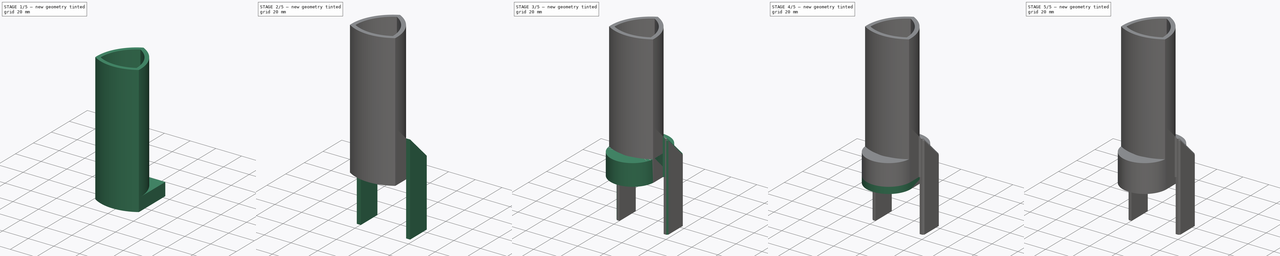
[diagram: build sequence overview — one tinted view per stage of 5, left to right]
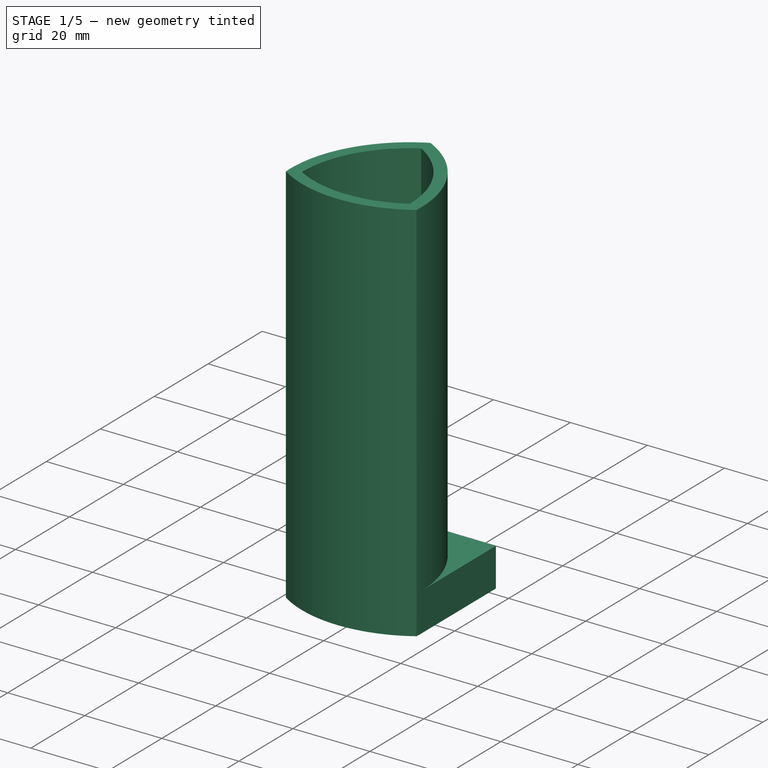
[diagram: stage 1 of 5 — iso view after this stage's code; geometry added in this stage tinted green]
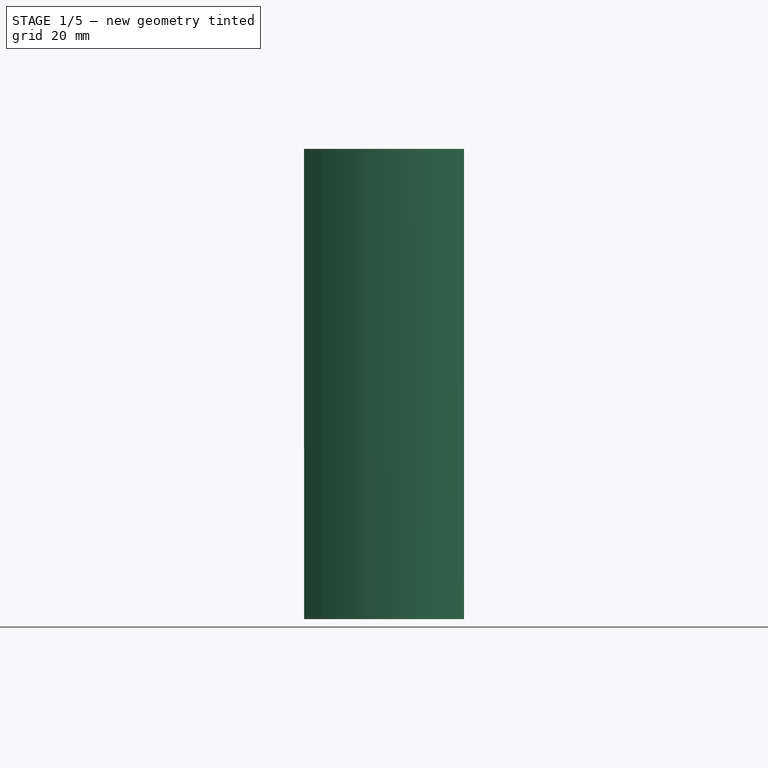
[diagram: stage 1 of 5 — front view after this stage's code; geometry added in this stage tinted green]
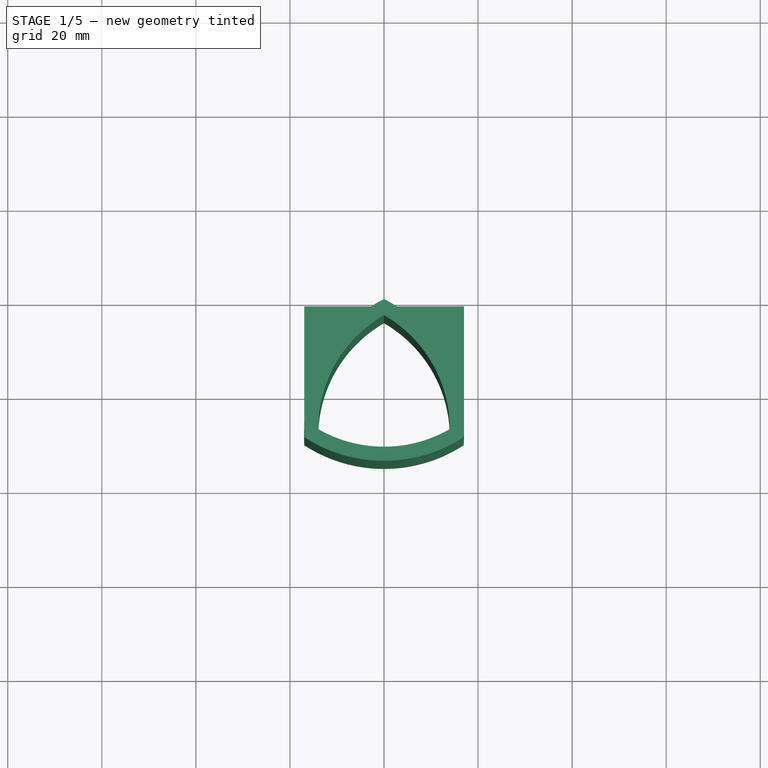
[diagram: stage 1 of 5 — top view after this stage's code; geometry added in this stage tinted green]
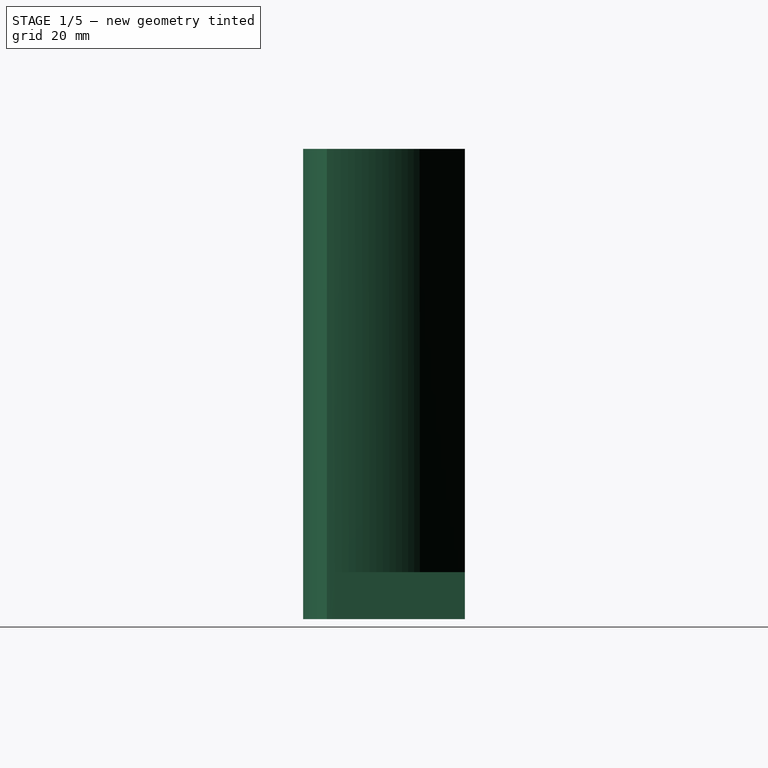
[diagram: stage 1 of 5 — right view after this stage's code; geometry added in this stage tinted green]
FCSTD DOCUMENT  (FreeCAD 1.1R39391 (Git))
Label: Щётка ручака
License: All rights reserved
LicenseURL: https://en.wikipedia.org/wiki/All_rights_reserved
objects: Sketcher::SketchObject×10, PartDesign::Pad×8, PartDesign::Pocket×3, PartDesign::Body×2, PartDesign::Chamfer×2, PartDesign::PolarPattern×1, PartDesign::Thickness×1, PartDesign::SubShapeBinder×1, PartDesign::Draft×1
note: 70 computed .brp shape members not serialized (recipe doc carries the construction recipe); baked Part::Feature solids carry a one-line shape summary decoded from their .brp

FEATURE [PartDesign::Body] Body  label="Тело"
  AllowCompound = false
  Group = -> [Sketch,Pad,Sketch001,Pad001,PolarPattern,Sketch002,Pad002,Sketch003,Pad003,Sketch004,Pocket,Sketch006,Pocket001,Sketch007,Pocket002]
  Origin = -> Origin
  Placement = pos=(-47,26,-5.8e-15) rot=(1,0,0;4.71239rad)
  Tip = -> Pocket002
FEATURE [Sketcher::SketchObject] Sketch008
  ArcFitTolerance = 1e-06
  AttachmentSupport = -> [XY_Plane002]
  ExternalTypes = [0]
  FullyConstrained = true
  MakeInternals = false
  MapMode = 5
  sketch-geometry (7):
    g0: LineSegment [constr] StartX=-5.3e-15 StartY=16.1658 StartZ=0 EndX=-14 EndY=-8.0829 EndZ=0
    g1: LineSegment [constr] StartX=-14 StartY=-8.0829 StartZ=0 EndX=14 EndY=-8.0829 EndZ=0
    g2: LineSegment [constr] StartX=14 StartY=-8.0829 StartZ=0 EndX=-5.3e-15 EndY=16.1658 EndZ=0
    g3: Circle [constr] CenterX=0 CenterY=0 CenterZ=0 NormalX=0 NormalY=0 NormalZ=1 AngleXU=0 Radius=16.1658
    g4: ArcOfCircle CenterX=14 CenterY=-8.0829 CenterZ=0 NormalX=0 NormalY=0 NormalZ=1 AngleXU=0 Radius=28 StartAngle=2.0944 EndAngle=3.14159
    g5: ArcOfCircle CenterX=-5.3e-15 CenterY=16.1658 CenterZ=0 NormalX=0 NormalY=0 NormalZ=1 AngleXU=0 Radius=28 StartAngle=4.18879 EndAngle=5.23599
    g6: ArcOfCircle CenterX=-14 CenterY=-8.0829 CenterZ=0 NormalX=0 NormalY=0 NormalZ=1 AngleXU=0 Radius=28 StartAngle=0 EndAngle=1.0472
  constraints (18):
    c: Coincident(g0,g1)
    c: Coincident(g1,g2)
    c: Coincident(g2,g0)
    c: Equal(g0,g1)
    c: PointOnObject(g0,g3)
    c: PointOnObject(g1,g3)
    c: PointOnObject(g2,g3)
    c: Horizontal(g1)
    c: Coincident(g4,g1)
    c: Coincident(g5,g0)
    c: Coincident(g5,g4)
    c: Coincident(g6,g0)
    c: Coincident(g6,g4)
    c: Coincident(g6,g5)
    c: Coincident(g1,g5)
    c: Coincident(g4,g0)
    c: DistanceX(g1,g1) = 28
    c: Coincident(g3,g-1)
FEATURE [PartDesign::Pad] Pad005
  Direction = (0,0,1)
  Length = 100
  Length2 = 10
  Profile = -> Sketch008
  ReferenceAxis = -> Sketch008 [N_Axis]
  Refine = true
  Suppressed = false
  Type = 0
FEATURE [PartDesign::Thickness] Thickness
  Base = -> Pad005 [Face4,Face5]
  BaseFeature = -> Pad005
  Intersection = false
  Join = 1
  Mode = 0
  Refine = true
  SupportTransform = false
  Suppressed = false
  Value = 3
FEATURE [Sketcher::SketchObject] Sketch009
  ArcFitTolerance = 1e-06
  AttachmentSupport = -> [Thickness]
  ExternalGeometry = -> [Thickness]
  ExternalTypes = [0]
  FullyConstrained = true
  MakeInternals = false
  MapMode = 5
  Placement = pos=(0,0,0) rot=(1,0,0;3.14159rad)
  sketch-geometry (6):
    g0: ArcOfCircle CenterX=14 CenterY=8.0829 CenterZ=0 NormalX=0 NormalY=0 NormalZ=1 AngleXU=0 Radius=31 StartAngle=3.08657 EndAngle=4.24382
    g1: ArcOfCircle CenterX=-14 CenterY=8.0829 CenterZ=0 NormalX=0 NormalY=0 NormalZ=1 AngleXU=0 Radius=31 StartAngle=5.18096 EndAngle=6.28319
    g2: LineSegment StartX=-16.9531 StartY=9.78786 StartZ=0 EndX=-16.9531 EndY=-19.5757 EndZ=0
    g3: LineSegment StartX=-16.9531 StartY=-19.5757 StartZ=0 EndX=-3.6e-15 EndY=-19.5757 EndZ=0
    g4: LineSegment StartX=-1.07e-14 StartY=-19.5757 StartZ=0 EndX=17 EndY=-19.5757 EndZ=0
    g5: LineSegment StartX=17 StartY=-19.5757 StartZ=0 EndX=17 EndY=8.0829 EndZ=0
  constraints (15):
    c: Coincident(g1,g-4)
    c: Coincident(g1,g-4)
    c: Coincident(g2,g0)
    c: Vertical(g2)
    c: Coincident(g3,g2)
    c: Coincident(g3,g0)
    c: Horizontal(g4)
    c: Coincident(g5,g4)
    c: Tangent(g5,g1) = -1.5708
    c: Vertical(g5)
    c: Coincident(g4,g1)
    c: Horizontal(g3)
    c: Coincident(g0,g-3)
    c: Coincident(g0,g-3)
    c: Horizontal(g0,g-3)
FEATURE [PartDesign::Pad] Pad006
  BaseFeature = -> Thickness
  Direction = (0,0,-1)
  Length = 10
  Length2 = 10
  Profile = -> Sketch009
  ReferenceAxis = -> Sketch009 [N_Axis]
  Refine = true
  Reversed = true
  Suppressed = false
  Type = 0
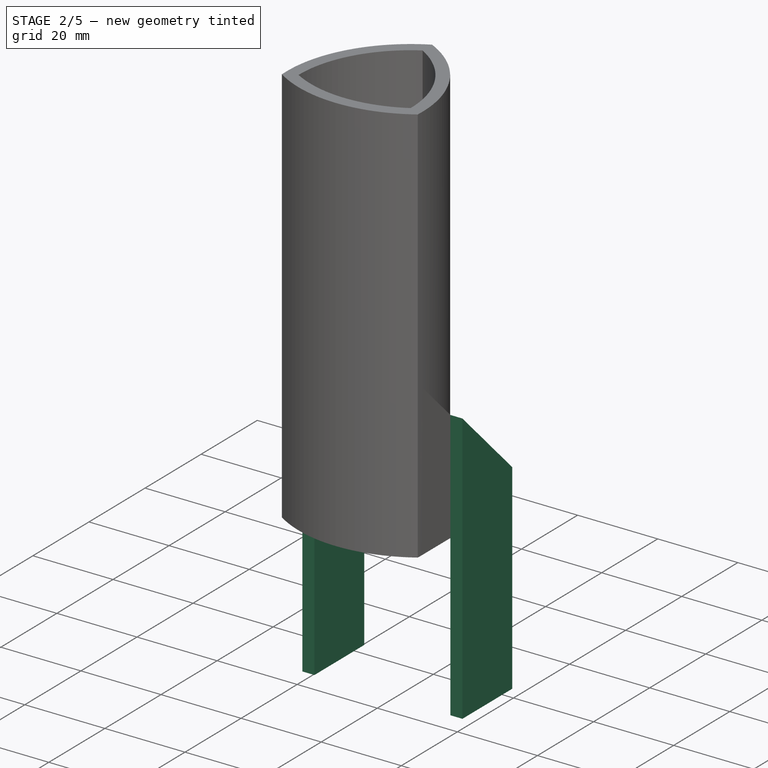
[diagram: stage 2 of 5 — iso view after this stage's code; geometry added in this stage tinted green]
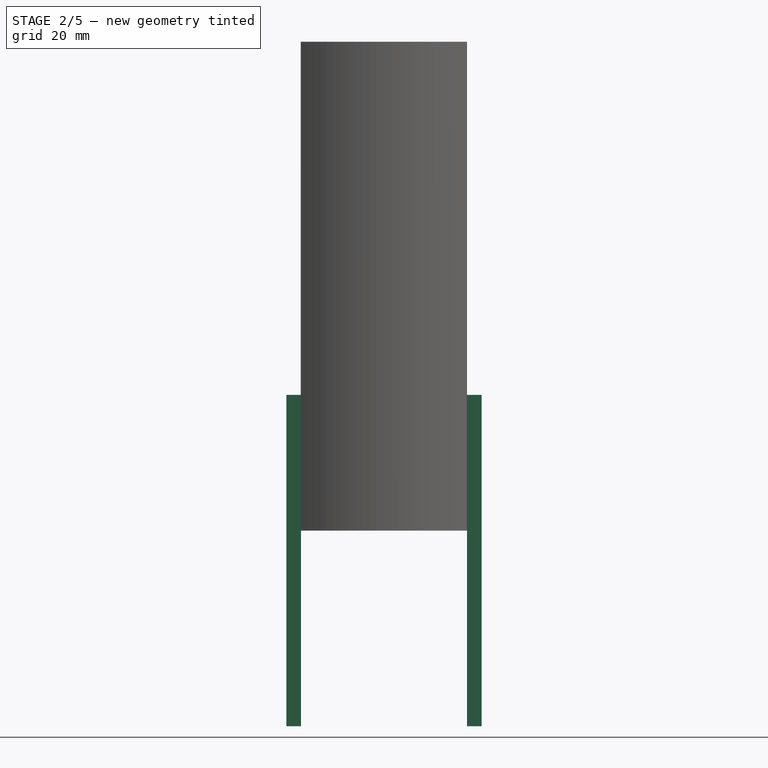
[diagram: stage 2 of 5 — front view after this stage's code; geometry added in this stage tinted green]
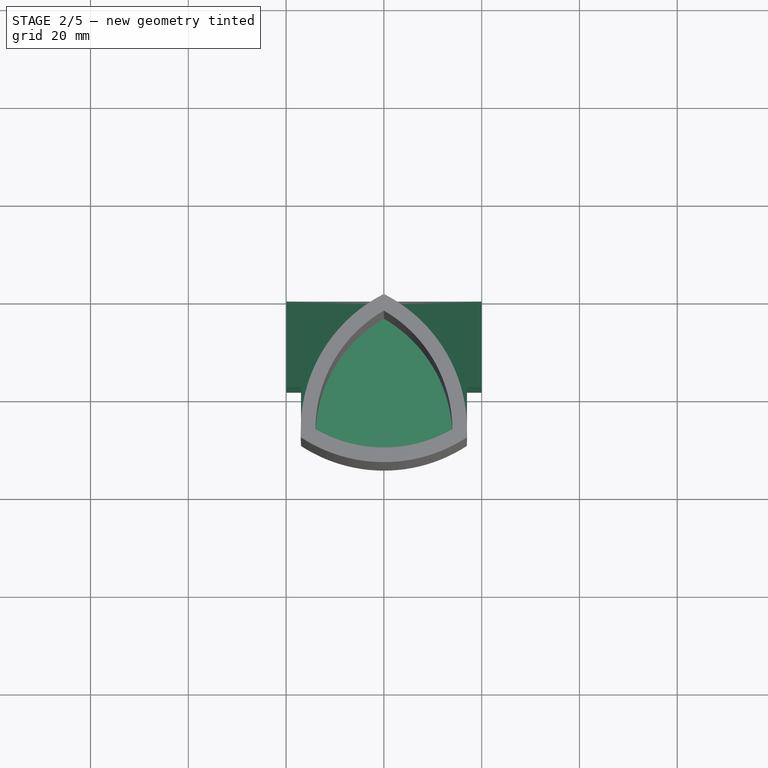
[diagram: stage 2 of 5 — top view after this stage's code; geometry added in this stage tinted green]
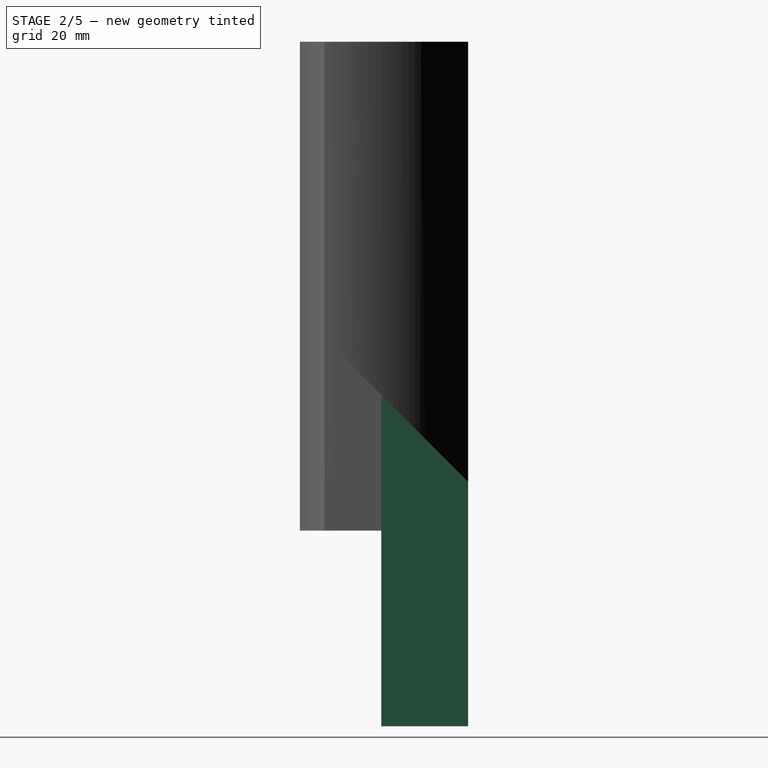
[diagram: stage 2 of 5 — right view after this stage's code; geometry added in this stage tinted green]
FEATURE [Sketcher::SketchObject] Sketch010
  ArcFitTolerance = 1e-06
  AttachmentSupport = -> [Pad006]
  ExternalGeometry = -> [Pad006]
  ExternalTypes = [0]
  FullyConstrained = false
  MakeInternals = false
  MapMode = 5
  Placement = pos=(0,0,0) rot=(1,0,0;3.14159rad)
  sketch-geometry (8):
    g0: LineSegment StartX=-16.9531 StartY=-19.5757 StartZ=0 EndX=-16.9531 EndY=-1.80447 EndZ=0
    g1: LineSegment StartX=-16.9531 StartY=-1.80447 StartZ=0 EndX=-19.9531 EndY=-1.80447 EndZ=0
    g2: LineSegment StartX=-19.9531 StartY=-1.80447 StartZ=0 EndX=-19.9531 EndY=-19.5757 EndZ=0
    g3: LineSegment StartX=-19.9531 StartY=-19.5757 StartZ=0 EndX=-16.9531 EndY=-19.5757 EndZ=0
    g4: LineSegment StartX=17 StartY=-1.80447 StartZ=0 EndX=17 EndY=-19.5757 EndZ=0
    g5: LineSegment StartX=17 StartY=-19.5757 StartZ=0 EndX=20 EndY=-19.5757 EndZ=0
    g6: LineSegment StartX=20 StartY=-19.5757 StartZ=0 EndX=20 EndY=-1.80447 EndZ=0
    g7: LineSegment StartX=20 StartY=-1.80447 StartZ=0 EndX=17 EndY=-1.80447 EndZ=0
  constraints (21):
    c: Coincident(g-4,g0)
    c: PointOnObject(g0,g-4)
    c: Coincident(g0,g1)
    c: Coincident(g1,g2)
    c: Coincident(g2,g3)
    c: Coincident(g3,g0)
    c: Horizontal(g1)
    c: Horizontal(g3)
    c: Vertical(g2)
    c: Coincident(g4,g5)
    c: Coincident(g5,g6)
    c: Coincident(g6,g7)
    c: Coincident(g7,g4)
    c: Vertical(g6)
    c: Horizontal(g5)
    c: Horizontal(g7)
    c: PointOnObject(g4,g-5)
    c: Coincident(g4,g-5)
    c: Horizontal(g0,g4)
    c: Equal(g7,g1)
    c: DistanceX(g1,g1) = 3
FEATURE [PartDesign::Pad] Pad007
  BaseFeature = -> Pad006
  Direction = (0,0,-1)
  Length = 40
  Length2 = 10
  Profile = -> Sketch010
  ReferenceAxis = -> Sketch010 [N_Axis]
  Refine = true
  Suppressed = false
  Type = 4
FEATURE [PartDesign::SubShapeBinder] Binder
  BindCopyOnChange = 0
  BindMode = 0
  ClaimChildren = false
  Context = -> Body002 [Binder.]
  Fuse = false
  MakeFace = true
  OffsetFill = false
  OffsetIntersection = false
  OffsetJoinType = 0
  OffsetOpenResult = false
  PartialLoad = false
  Refine = true
  Relative = true
  Support = -> [Pad007[Edge8,Edge3,Edge6]]
  _Version = 2
FEATURE [PartDesign::Pad] Pad008
  BaseFeature = -> Pad007
  Direction = (0,0,1)
  Length = 5
  Length2 = 10
  Profile = -> Binder
  Refine = true
  Suppressed = false
  Type = 0
FEATURE [PartDesign::Draft] Draft
  Angle = 45
  Base = -> Pad008 [Face13,Face12]
  BaseFeature = -> Pad008
  Refine = true
  Reversed = true
  SupportTransform = false
  Suppressed = false
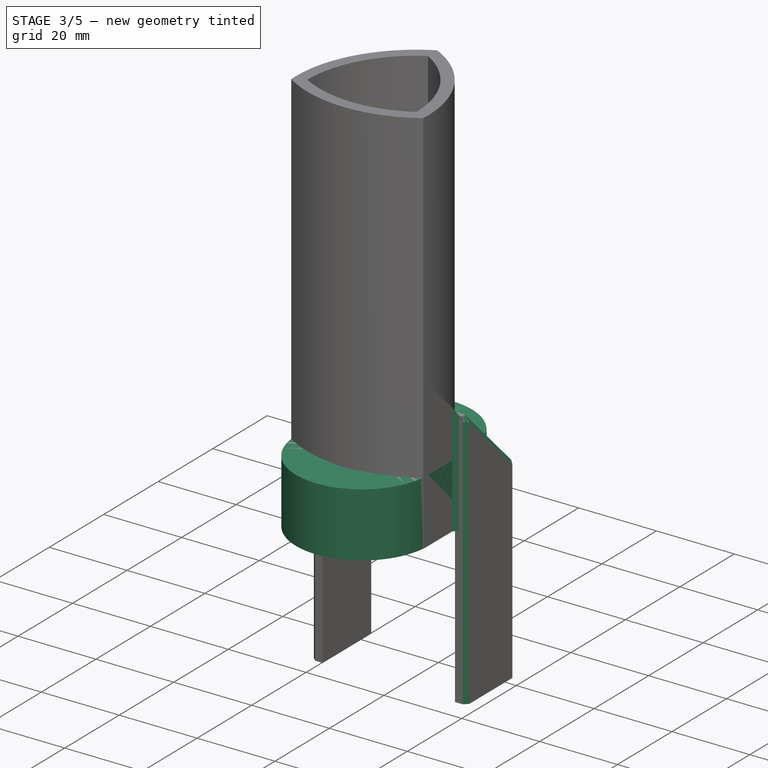
[diagram: stage 3 of 5 — iso view after this stage's code; geometry added in this stage tinted green]
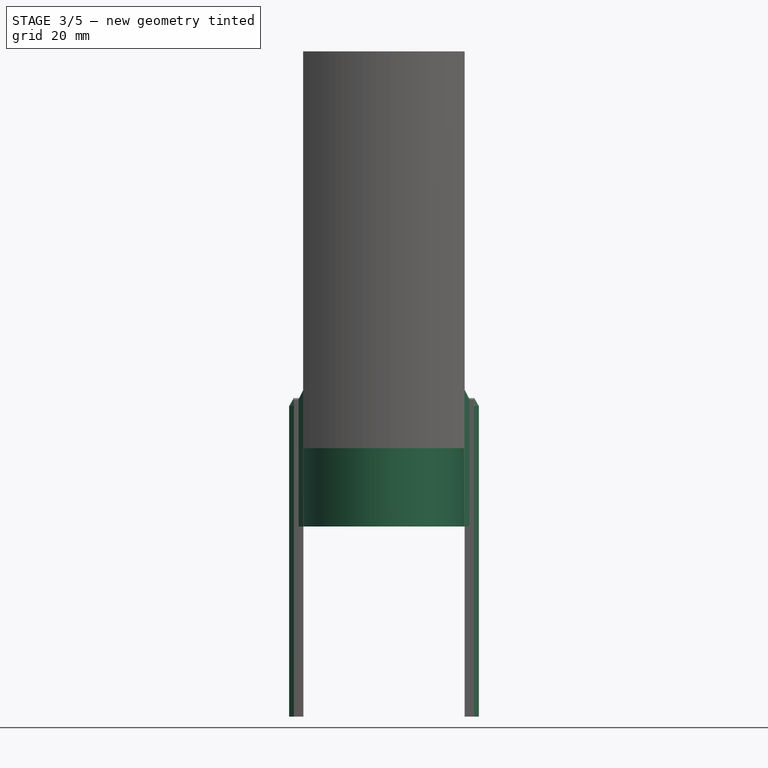
[diagram: stage 3 of 5 — front view after this stage's code; geometry added in this stage tinted green]
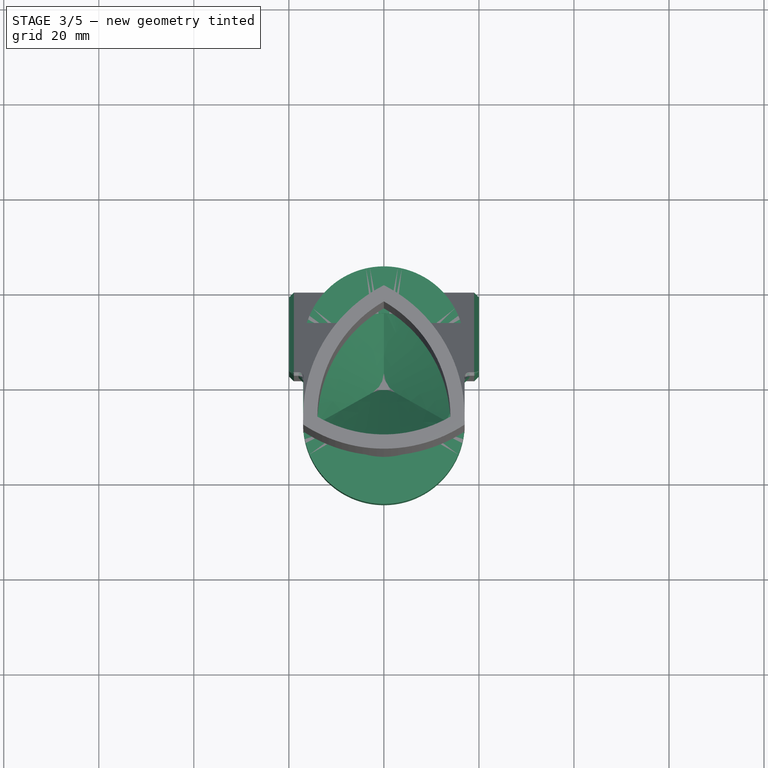
[diagram: stage 3 of 5 — top view after this stage's code; geometry added in this stage tinted green]
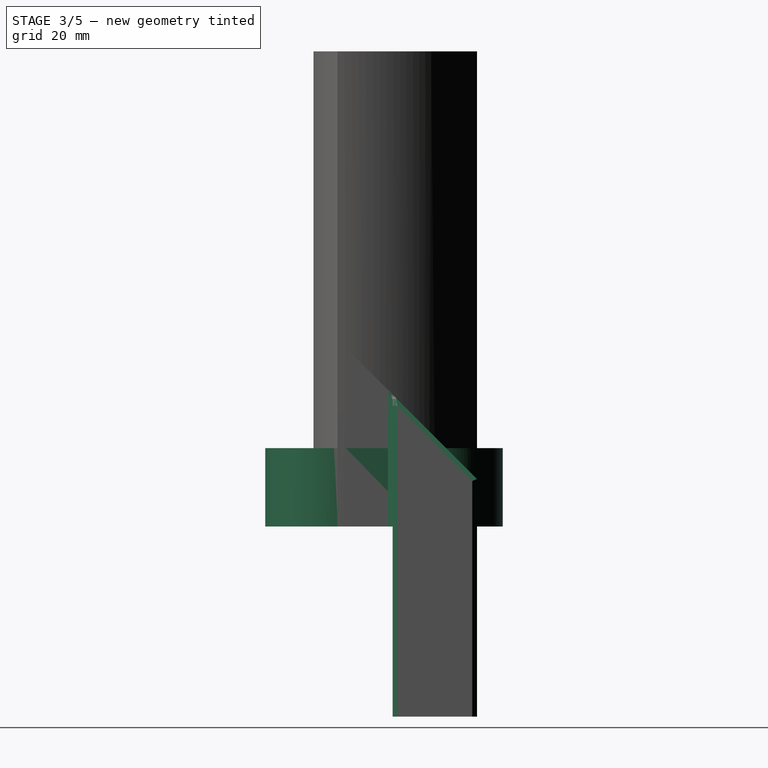
[diagram: stage 3 of 5 — right view after this stage's code; geometry added in this stage tinted green]
FEATURE [Sketcher::SketchObject] Sketch
  ArcFitTolerance = 1e-06
  AttachmentSupport = -> [XY_Plane]
  ExternalTypes = [0]
  FullyConstrained = true
  MakeInternals = false
  MapMode = 5
  sketch-geometry (7):
    g0: Circle CenterX=0 CenterY=0 CenterZ=0 NormalX=0 NormalY=0 NormalZ=1 AngleXU=0 Radius=15.1
    g1: ArcOfCircle CenterX=-5e-16 CenterY=8 CenterZ=0 NormalX=0 NormalY=0 NormalZ=1 AngleXU=0 Radius=17 StartAngle=0 EndAngle=3.14159
    g2: ArcOfCircle CenterX=5e-16 CenterY=-8 CenterZ=0 NormalX=0 NormalY=0 NormalZ=1 AngleXU=0 Radius=17 StartAngle=3.14159 EndAngle=6.28319
    g3: LineSegment StartX=-17 StartY=8 StartZ=0 EndX=-17 EndY=-8 EndZ=0
    g4: LineSegment StartX=17 StartY=-8 StartZ=0 EndX=17 EndY=8 EndZ=0
    g5: GeomPoint X=0 Y=25 Z=0
    g6: GeomPoint X=0 Y=-25 Z=0
  constraints (20):
    c: Coincident(g0,g-1)
    c: Tangent(g4,g1) = -1.5708
    c: Tangent(g3,g1) = -1.5708
    c: Horizontal(g1,g1)
    c: Horizontal(g1,g1)
    c: Horizontal(g2,g2)
    c: Horizontal(g2,g2)
    c: Coincident(g4,g2)
    c: Coincident(g3,g2)
    c: PointOnObject(g5,g1)
    c: PointOnObject(g6,g2)
    c: PointOnObject(g6,g-2)
    c: PointOnObject(g5,g-2)
    c: DistanceY(g6,g5) = 50
    c: DistanceX(g1,g1) = 34
    c: Diameter(g0) = 30.2
    c: Symmetric(g2,g1,g0)
    c: Angle(g1) = 3.14159
    c: Diameter(g1) = 34
    c: DistanceY(g1,g5) = 17
FEATURE [PartDesign::Pad] Pad
  Direction = (0,0,1)
  Length = 16.5
  Length2 = 10
  Profile = -> Sketch
  ReferenceAxis = -> Sketch [N_Axis]
  Refine = true
  Suppressed = false
  Type = 0
FEATURE [Sketcher::SketchObject] Sketch001
  ArcFitTolerance = 1e-06
  AttachmentSupport = -> [XY_Plane]
  ExternalGeometry = -> [Pad]
  ExternalTypes = [0]
  FullyConstrained = true
  MakeInternals = false
  MapMode = 5
  sketch-geometry (2):
    g0: ArcOfCircle CenterX=0 CenterY=0 CenterZ=0 NormalX=0 NormalY=0 NormalZ=1 AngleXU=0 Radius=15.1 StartAngle=1.43825 EndAngle=1.70334
    g1: ArcOfCircle CenterX=0 CenterY=15.1 CenterZ=0 NormalX=0 NormalY=0 NormalZ=1 AngleXU=0 Radius=2 StartAngle=3.20787 EndAngle=6.21691
  constraints (7):
    c: Coincident(g0,g-1)
    c: PointOnObject(g0,g-3)
    c: Coincident(g1,g0)
    c: Coincident(g1,g0)
    c: PointOnObject(g1,g-2)
    c: PointOnObject(g1,g0)
    c: Radius(g1) = 2
FEATURE [PartDesign::Pad] Pad001
  BaseFeature = -> Pad
  Direction = (0,0,1)
  Length = 5.25
  Length2 = 10
  Profile = -> Sketch001
  ReferenceAxis = -> Sketch001 [N_Axis]
  Refine = true
  Suppressed = false
  Type = 0
FEATURE [PartDesign::Chamfer] Chamfer
  Angle = 45
  Base = -> Draft [Edge41,Edge38,Edge39,Edge40,Edge10,Edge7,Edge44,Edge37,Edge48,Edge51]
  BaseFeature = -> Draft
  ChamferType = 0
  FlipDirection = false
  Refine = true
  Size = 1
  Size2 = 1
  SupportTransform = false
  Suppressed = false
  UseAllEdges = false
FEATURE [PartDesign::Chamfer] Chamfer001
  Angle = 45
  Base = -> Chamfer [Face36]
  BaseFeature = -> Chamfer
  ChamferType = 0
  FlipDirection = false
  Refine = true
  Size = 11
  Size2 = 1
  SupportTransform = false
  Suppressed = false
  UseAllEdges = false
FEATURE [PartDesign::Body] Body002  label="Тело002"
  AllowCompound = false
  Group = -> [Sketch008,Pad005,Thickness,Sketch009,Pad006,Sketch010,Pad007,Binder,Pad008,Draft,Chamfer,Chamfer001]
  Origin = -> Origin002
  Placement = pos=(-47,16,26) rot=(0,0,1;0rad)
  Tip = -> Chamfer001
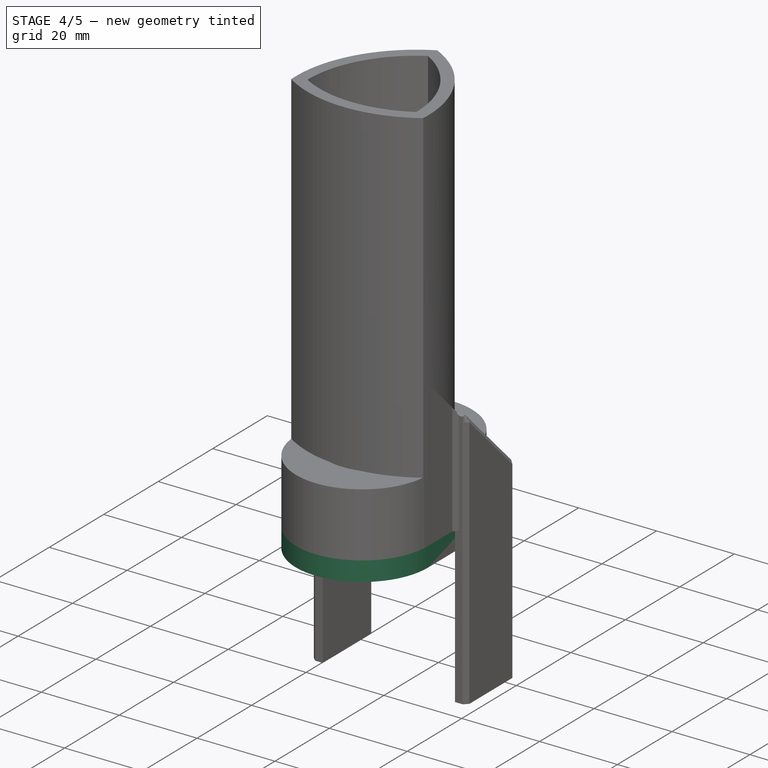
[diagram: stage 4 of 5 — iso view after this stage's code; geometry added in this stage tinted green]
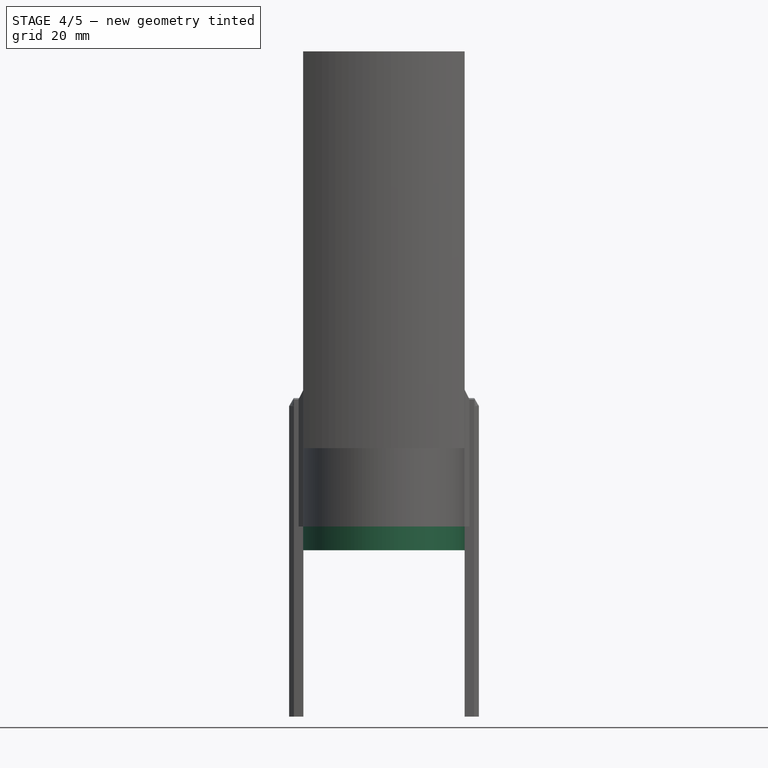
[diagram: stage 4 of 5 — front view after this stage's code; geometry added in this stage tinted green]
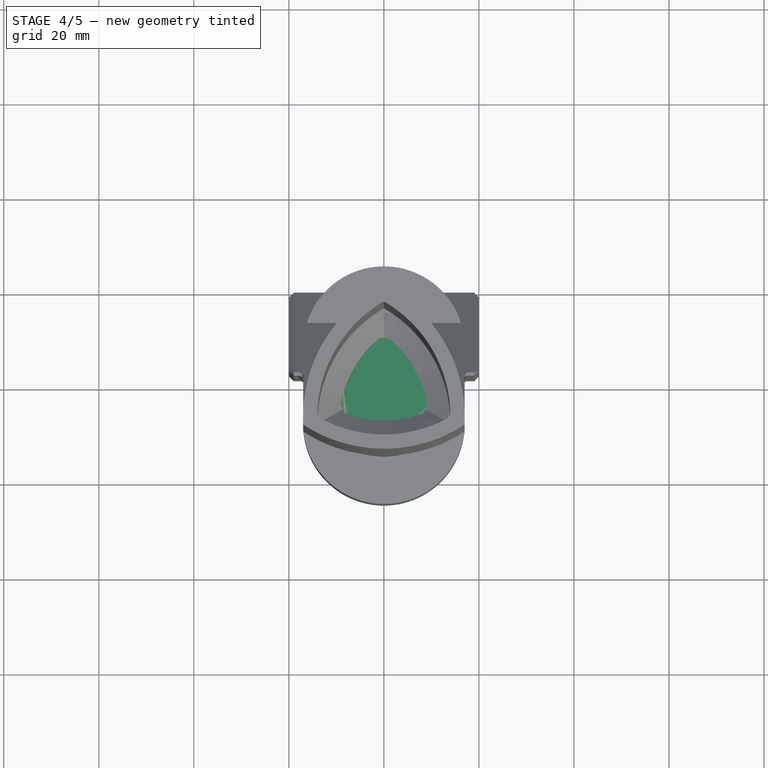
[diagram: stage 4 of 5 — top view after this stage's code; geometry added in this stage tinted green]
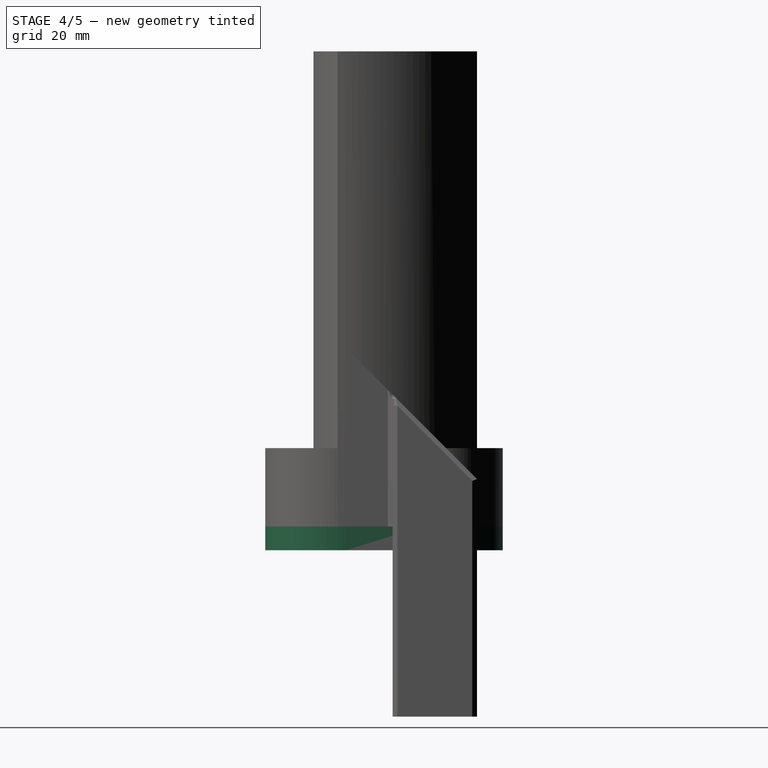
[diagram: stage 4 of 5 — right view after this stage's code; geometry added in this stage tinted green]
FEATURE [PartDesign::PolarPattern] PolarPattern
  Angle = 360
  Axis = -> Sketch001 [N_Axis]
  BaseFeature = -> Pad001
  Mode = 0
  Occurrences = 8
  Offset = 120
  Originals = -> [Pad001]
  Refine = true
  Suppressed = false
  TransformMode = 0
FEATURE [Sketcher::SketchObject] Sketch002
  ArcFitTolerance = 1e-06
  AttachmentSupport = -> [PolarPattern]
  ExternalGeometry = -> [PolarPattern]
  ExternalTypes = [0]
  FullyConstrained = true
  MakeInternals = false
  MapMode = 5
  Placement = pos=(0,0,0) rot=(1,0,0;3.14159rad)
  sketch-geometry (4):
    g0: ArcOfCircle CenterX=-2e-16 CenterY=-8.00005 CenterZ=0 NormalX=0 NormalY=0 NormalZ=1 AngleXU=0 Radius=17 StartAngle=3.14159 EndAngle=6.28319
    g1: ArcOfCircle CenterX=-3e-16 CenterY=8.00005 CenterZ=0 NormalX=0 NormalY=0 NormalZ=1 AngleXU=0 Radius=17 StartAngle=6.28318 EndAngle=9.42478
    g2: LineSegment StartX=-17 StartY=-8 StartZ=0 EndX=-17 EndY=8 EndZ=0
    g3: LineSegment StartX=17 StartY=-8 StartZ=0 EndX=17 EndY=8 EndZ=0
  constraints (10):
    c: Coincident(g0,g-6)
    c: Coincident(g0,g-6)
    c: Coincident(g1,g-5)
    c: Coincident(g1,g-5)
    c: Coincident(g2,g0)
    c: Coincident(g2,g1)
    c: Coincident(g3,g0)
    c: Coincident(g3,g1)
    c: Equal(g1,g-5)
    c: Equal(g0,g-6)
FEATURE [PartDesign::Pad] Pad002
  BaseFeature = -> PolarPattern
  Direction = (0,0,-1)
  Length = 5
  Length2 = 10
  Profile = -> Sketch002
  ReferenceAxis = -> Sketch002 [N_Axis]
  Refine = true
  Suppressed = false
  Type = 0
FEATURE [Sketcher::SketchObject] Sketch003
  ArcFitTolerance = 1e-06
  AttachmentSupport = -> [Pad002]
  ExternalTypes = [0]
  FullyConstrained = true
  MakeInternals = false
  MapMode = 5
  sketch-geometry (1):
    g0: Circle CenterX=0 CenterY=0 CenterZ=0 NormalX=0 NormalY=0 NormalZ=1 AngleXU=0 Radius=10.125
  constraints (2):
    c: Coincident(g0,g-1)
    c: Diameter(g0) = 20.25
FEATURE [PartDesign::Pad] Pad003
  BaseFeature = -> Pad002
  Direction = (0,0,1)
  Length = 11.5
  Length2 = 10
  Profile = -> Sketch003
  ReferenceAxis = -> Sketch003 [N_Axis]
  Refine = true
  Suppressed = false
  Type = 0
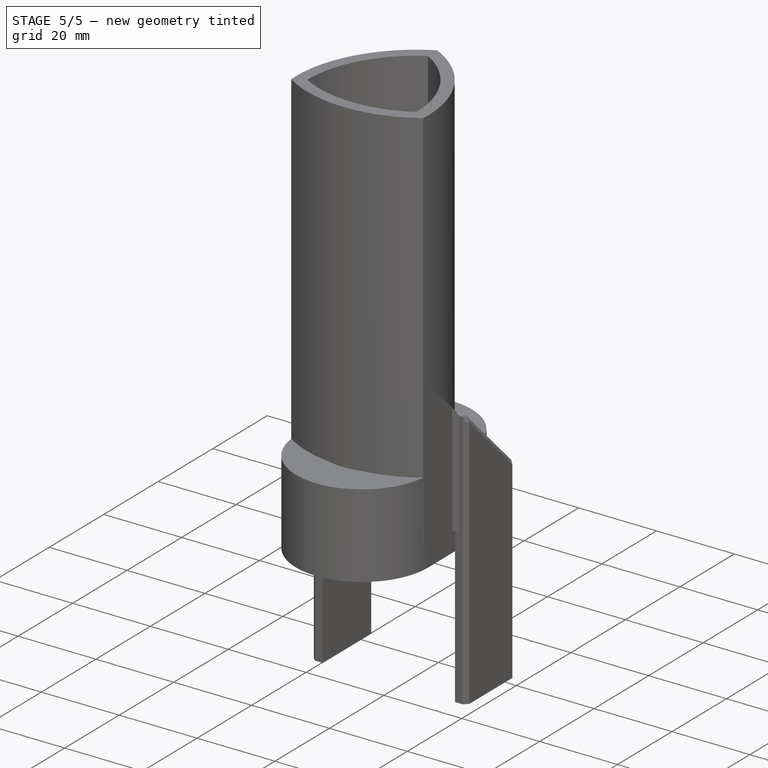
[diagram: stage 5 of 5 — iso view after this stage's code; geometry added in this stage tinted green]
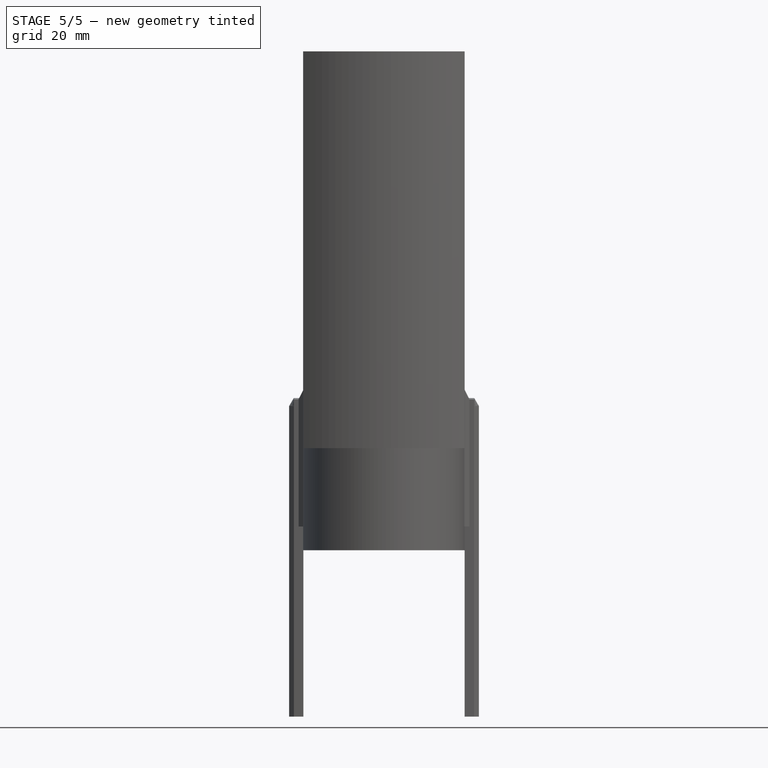
[diagram: stage 5 of 5 — front view after this stage's code; geometry added in this stage tinted green]
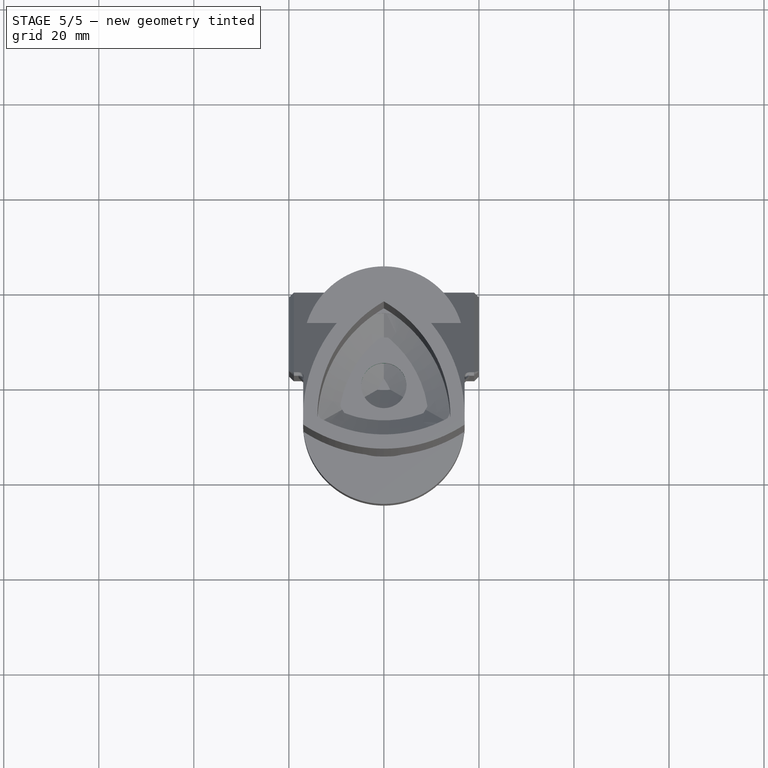
[diagram: stage 5 of 5 — top view after this stage's code; geometry added in this stage tinted green]
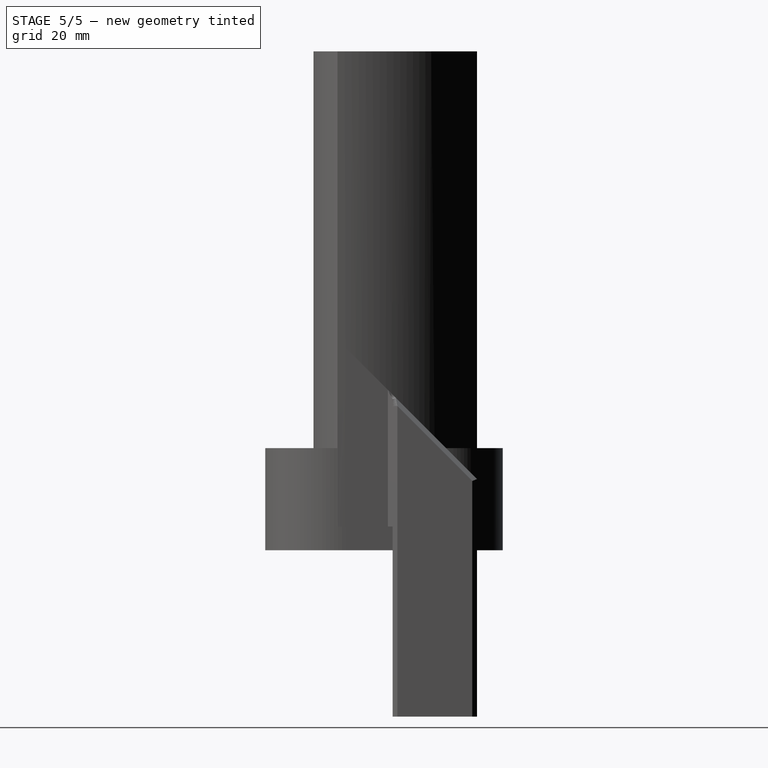
[diagram: stage 5 of 5 — right view after this stage's code; geometry added in this stage tinted green]
FEATURE [Sketcher::SketchObject] Sketch004
  ArcFitTolerance = 1e-06
  AttachmentSupport = -> [Pad003]
  ExternalTypes = [0]
  FullyConstrained = true
  MakeInternals = false
  MapMode = 5
  Placement = pos=(0,0,11.5) rot=(0,0,1;0rad)
  sketch-geometry (1):
    g0: Circle CenterX=0 CenterY=0 CenterZ=0 NormalX=0 NormalY=0 NormalZ=1 AngleXU=0 Radius=4.75
  constraints (2):
    c: Coincident(g0,g-1)
    c: Diameter(g0) = 9.5
FEATURE [PartDesign::Pocket] Pocket
  BaseFeature = -> Pad003
  Direction = (0,0,-1)
  Length = 5
  Length2 = 5
  Profile = -> Sketch004
  ReferenceAxis = -> Sketch004 [N_Axis]
  Refine = true
  Suppressed = false
  Type = 1
FEATURE [Sketcher::SketchObject] Sketch006
  ArcFitTolerance = 1e-06
  AttachmentSupport = -> [Pocket]
  ExternalTypes = [0]
  FullyConstrained = true
  MakeInternals = false
  MapMode = 5
  Placement = pos=(0,0,-5) rot=(1,0,0;3.14159rad)
  sketch-geometry (1):
    g0: Circle CenterX=0 CenterY=0 CenterZ=0 NormalX=0 NormalY=0 NormalZ=1 AngleXU=0 Radius=6.65
  constraints (2):
    c: Coincident(g0,g-1)
    c: Diameter(g0) = 13.3
FEATURE [PartDesign::Pocket] Pocket001
  BaseFeature = -> Pocket
  Direction = (0,0,1)
  Length = 5
  Length2 = 5
  Profile = -> Sketch006
  ReferenceAxis = -> Sketch006 [N_Axis]
  Refine = true
  Suppressed = false
  Type = 0
FEATURE [Sketcher::SketchObject] Sketch007
  ArcFitTolerance = 1e-06
  AttachmentSupport = -> [Pocket001]
  ExternalGeometry = -> [Pocket001]
  ExternalTypes = [0]
  FullyConstrained = true
  MakeInternals = false
  MapMode = 5
  Placement = pos=(0,0,-5) rot=(1,0,0;3.14159rad)
  sketch-geometry (4):
    g0: ArcOfCircle CenterX=-3e-16 CenterY=8.00005 CenterZ=0 NormalX=0 NormalY=0 NormalZ=1 AngleXU=0 Radius=15 StartAngle=6.28318 EndAngle=9.42478
    g1: ArcOfCircle CenterX=-2e-16 CenterY=-8.00005 CenterZ=0 NormalX=0 NormalY=0 NormalZ=1 AngleXU=0 Radius=15 StartAngle=3.14159 EndAngle=6.28319
    g2: LineSegment StartX=-15 StartY=-8 StartZ=0 EndX=-15 EndY=8 EndZ=0
    g3: LineSegment StartX=15 StartY=-7.99999 StartZ=0 EndX=15 EndY=8 EndZ=0
  constraints (12):
    c: Coincident(g0,g-3)
    c: Coincident(g1,g-5)
    c: Coincident(g2,g1)
    c: Coincident(g2,g0)
    c: Vertical(g2)
    c: Coincident(g3,g1)
    c: Coincident(g3,g0)
    c: Vertical(g3)
    c: Distance(g-4,g0) = 2
    c: Horizontal(g-5,g1)
    c: Horizontal(g-4,g0)
    c: Horizontal(g0,g0)
FEATURE [PartDesign::Pocket] Pocket002
  BaseFeature = -> Pocket001
  Direction = (0,0,1)
  Length = 2
  Length2 = 5
  Profile = -> Sketch007
  ReferenceAxis = -> Sketch007 [N_Axis]
  Refine = true
  Suppressed = false
  Type = 0
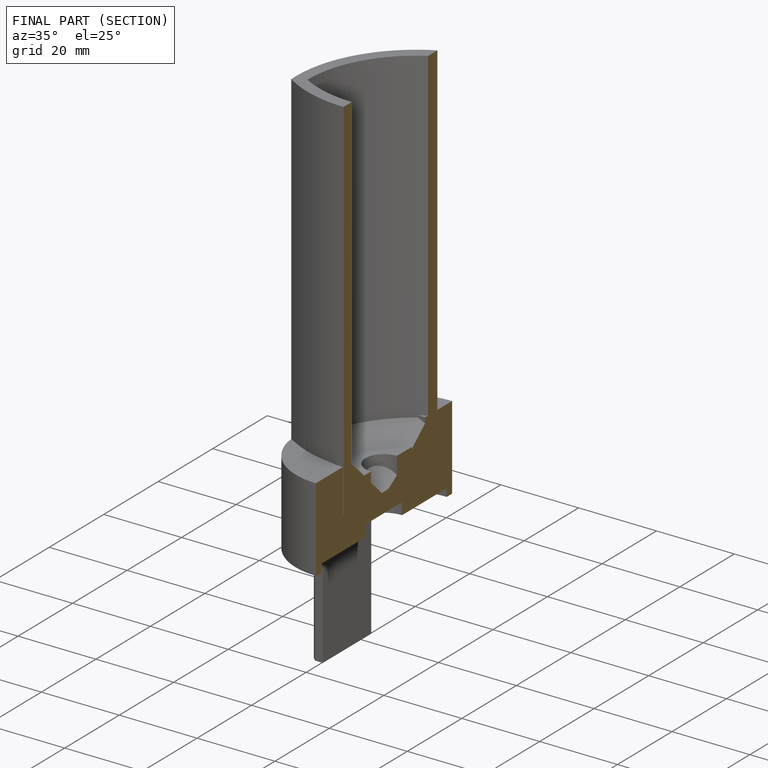
[diagram: finished part — half-section view (interior)]
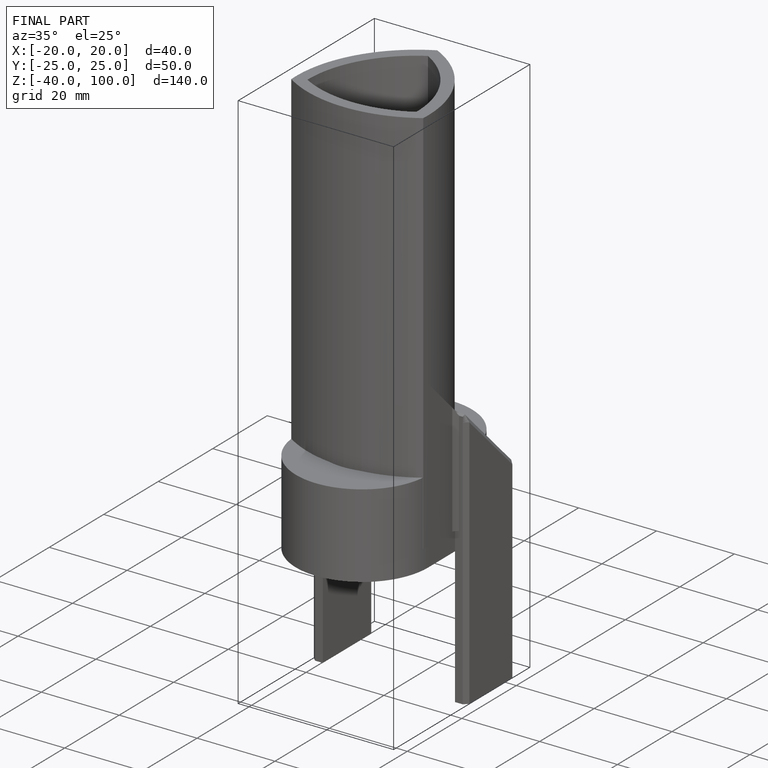
[diagram: finished part — iso view with bounding-box wireframe]
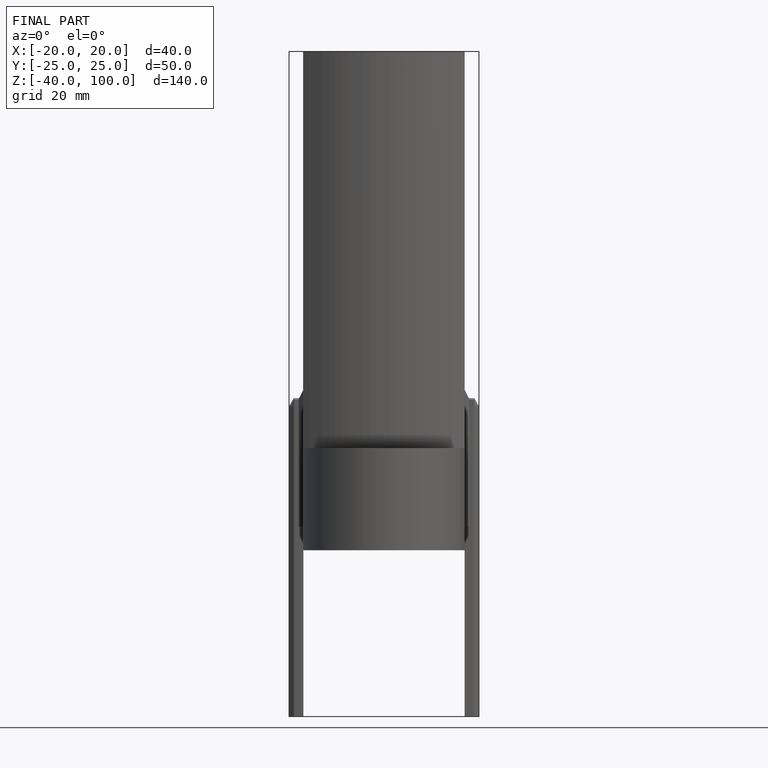
[diagram: finished part — front view with bounding-box wireframe]
